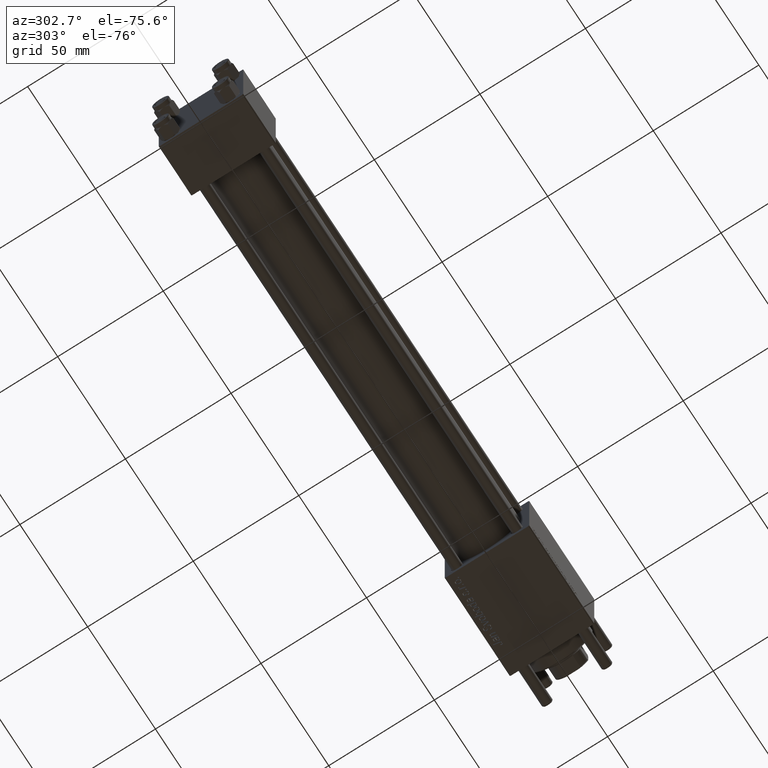
[diagram: clean part render]
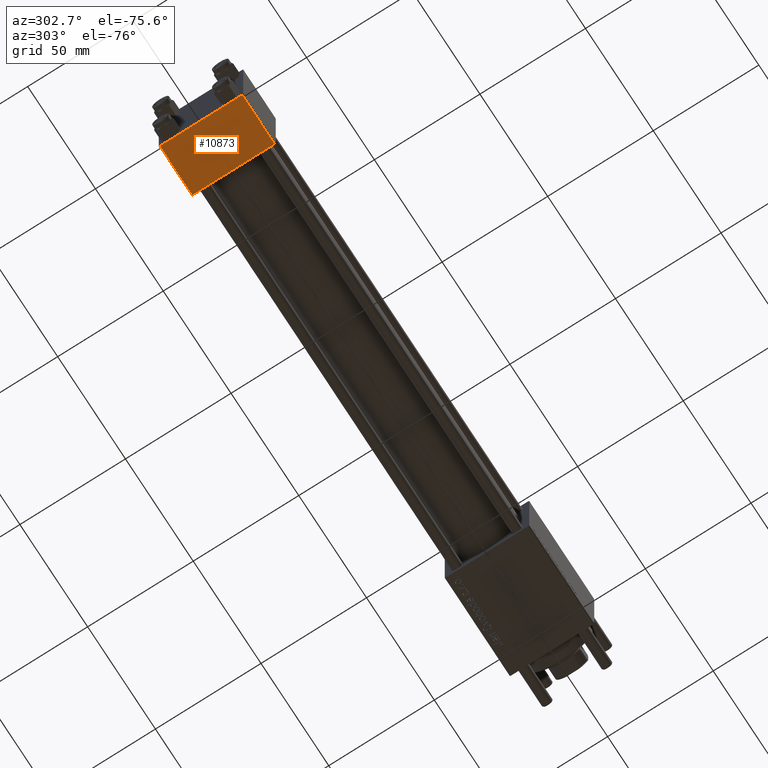
[diagram: same view with one face highlighted and labeled with its STEP entity id]
A machine part, auxiliary view. The second image highlights one B-rep face of the part: STEP entity #10873.
In plain terms, the highlighted planar face has unit normal (0, -0, -1).
Its self-contained STEP definition (entity closure, byte-faithful):
#691 = CARTESIAN_POINT ( 'NONE',  ( 24.00000000000000000, -19.50000000000000711, -20.00000000000000000 ) ) ;
#1497 = ORIENTED_EDGE ( 'NONE', *, *, #25560, .T. ) ;
#1895 = VECTOR ( 'NONE', #25947, 1000.000000000000000 ) ;
#2059 = EDGE_CURVE ( 'NONE', #30817, #31184, #8473, .T. ) ;
#8456 = CARTESIAN_POINT ( 'NONE',  ( 24.00000000000000000, 20.00000000000000000, -20.00000000000000711 ) ) ;
#8473 = LINE ( 'NONE', #43165, #40975 ) ;
#10873 = ADVANCED_FACE ( 'NONE', ( #49601 ), #14920, .T. ) ;
#11915 = LINE ( 'NONE', #8456, #1895 ) ;
#12210 = DIRECTION ( 'NONE',  ( -1.000000000000000000, 0.000000000000000000, 0.000000000000000000 ) ) ;
#12488 = EDGE_CURVE ( 'NONE', #53379, #31184, #31666, .T. ) ;
#14920 = PLANE ( 'NONE',  #20928 ) ;
#16477 = CARTESIAN_POINT ( 'NONE',  ( 24.00000000000000000, 19.50000000000000711, -20.00000000000000711 ) ) ;
#18234 = CARTESIAN_POINT ( 'NONE',  ( 0.000000000000000000, 19.50000000000000711, -20.00000000000000711 ) ) ;
#18956 = CARTESIAN_POINT ( 'NONE',  ( 0.000000000000000000, -19.50000000000000711, -20.00000000000000000 ) ) ;
#20195 = CARTESIAN_POINT ( 'NONE',  ( 24.00000000000000000, 19.50000000000000711, -20.00000000000000711 ) ) ;
#20928 = AXIS2_PLACEMENT_3D ( 'NONE', #27833, #54460, #23798 ) ;
#22762 = CARTESIAN_POINT ( 'NONE',  ( 0.000000000000000000, 20.00000000000000000, -20.00000000000000711 ) ) ;
#23798 = DIRECTION ( 'NONE',  ( 0.000000000000000000, 1.000000000000000000, -1.734723475976806848E-16 ) ) ;
#25560 = EDGE_CURVE ( 'NONE', #53379, #36350, #51138, .T. ) ;
#25947 = DIRECTION ( 'NONE',  ( 0.000000000000000000, -1.000000000000000000, 1.734723475976807094E-16 ) ) ;
#27833 = CARTESIAN_POINT ( 'NONE',  ( 24.00000000000000000, 20.00000000000000000, -20.00000000000000711 ) ) ;
#30817 = VERTEX_POINT ( 'NONE', #691 ) ;
#31184 = VERTEX_POINT ( 'NONE', #18956 ) ;
#31666 = LINE ( 'NONE', #22762, #53926 ) ;
#33128 = DIRECTION ( 'NONE',  ( 1.000000000000000000, 0.000000000000000000, 0.000000000000000000 ) ) ;
#34436 = ORIENTED_EDGE ( 'NONE', *, *, #2059, .T. ) ;
#36350 = VERTEX_POINT ( 'NONE', #16477 ) ;
#40580 = EDGE_LOOP ( 'NONE', ( #48793, #1497, #47177, #34436 ) ) ;
#40975 = VECTOR ( 'NONE', #12210, 1000.000000000000000 ) ;
#43165 = CARTESIAN_POINT ( 'NONE',  ( 0.000000000000000000, -19.50000000000000711, -20.00000000000000000 ) ) ;
#44275 = DIRECTION ( 'NONE',  ( 0.000000000000000000, -1.000000000000000000, 1.734723475976807094E-16 ) ) ;
#47177 = ORIENTED_EDGE ( 'NONE', *, *, #56556, .T. ) ;
#48461 = VECTOR ( 'NONE', #33128, 1000.000000000000000 ) ;
#48793 = ORIENTED_EDGE ( 'NONE', *, *, #12488, .F. ) ;
#49601 = FACE_OUTER_BOUND ( 'NONE', #40580, .T. ) ;
#51138 = LINE ( 'NONE', #20195, #48461 ) ;
#53379 = VERTEX_POINT ( 'NONE', #18234 ) ;
#53926 = VECTOR ( 'NONE', #44275, 1000.000000000000000 ) ;
#54460 = DIRECTION ( 'NONE',  ( 0.000000000000000000, -1.734723475976806848E-16, -1.000000000000000000 ) ) ;
#56556 = EDGE_CURVE ( 'NONE', #36350, #30817, #11915, .T. ) ;